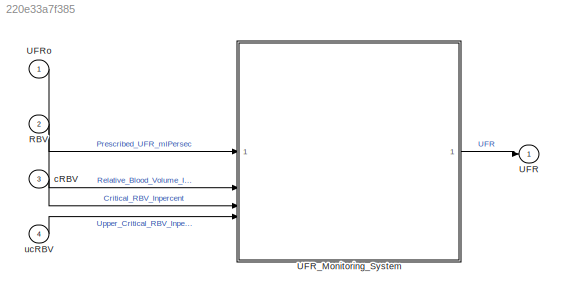
MODEL slx_220e33a7f385
KIND model
CONFIG AbsTol = auto
CONFIG EnableMultiTasking = off
CONFIG FixedStep = auto
CONFIG MaxStep = auto
CONFIG MinStep = auto
CONFIG RelTol = 1e-3
CONFIG SampleTimeConstraint = Unconstrained
CONFIG SolverName = VariableStepAuto
CONFIG StartTime = 0.0
CONFIG StopTime = 3600*4
BLOCK [Inport] RBV
  OutDataTypeStr = double
  OutMax = 255
  OutMin = 0
  Port = 2
  PortDimensions = 1
  SampleTime = 0.01
  SamplingMode = Sample based
  SignalType = real
BLOCK [Outport] UFR
  OutDataTypeStr = double
  OutMax = 255
  OutMin = 0
  PortDimensions = 1
  SampleTime = [0,1]
  SamplingMode = Sample based
  SignalType = real
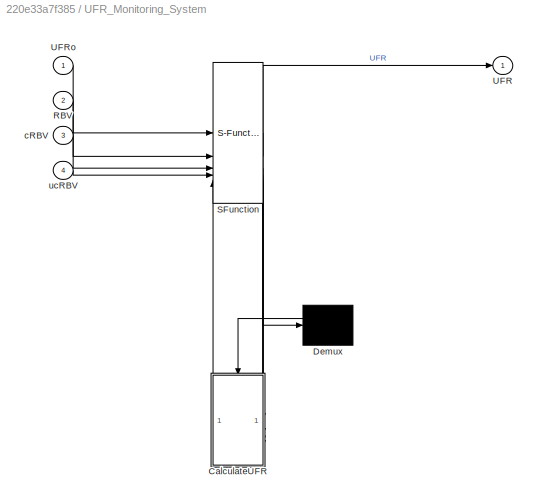
BLOCK [SubSystem] UFR_Monitoring_System
  ErrorFcn = Stateflow.Translate.translate
  PermitHierarchicalResolution = ExplicitOnly
  SFBlockType = Chart
  TreatAsAtomicUnit = on
BLOCK [Demux] UFR_Monitoring_System/ Demux 
  Outputs = 1
BLOCK [S-Function] UFR_Monitoring_System/ SFunction 
  EnableBusSupport = on
  FunctionName = sf_sfun
  PortCounts = [5 6]
  SFcnIsStateOwnerBlock = off
  SFunctionDeploymentMode = off
  Tag = Stateflow S-Function 2
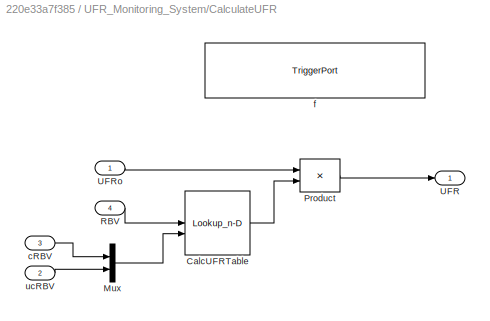
BLOCK [SubSystem] UFR_Monitoring_System/CalculateUFR
  PreDeleteFcn = Stateflow.SLINSF.SimulinkMan.removePreDeleteFcn
  UndoDeleteFcn = Stateflow.SLINSF.SimulinkMan.restorePreDeleteFcn
BLOCK [Lookup_n-D] UFR_Monitoring_System/CalculateUFR/CalcUFRTable
  BreakpointsForDimension1 = [out.cRBV out.ucRBV]
  BreakpointsForDimension1Source = Input port
  InputPortMap = u0,p5
  InternalRulePriority = Speed
  NumberOfTableDimensions = 1
  RndMeth = Simplest
  Table = [0 1]
BLOCK [Mux] UFR_Monitoring_System/CalculateUFR/Mux
  DisplayOption = bar
  Inputs = 2
BLOCK [Product] UFR_Monitoring_System/CalculateUFR/Product
BLOCK [Inport] UFR_Monitoring_System/CalculateUFR/RBV
  OutDataTypeStr = double
  Port = 4
  PortDimensions = 1
  SignalType = real
  VarSizeSig = No
BLOCK [Outport] UFR_Monitoring_System/CalculateUFR/UFR
BLOCK [Inport] UFR_Monitoring_System/CalculateUFR/UFRo
  OutDataTypeStr = double
  PortDimensions = 1
  SignalType = real
  VarSizeSig = No
BLOCK [Inport] UFR_Monitoring_System/CalculateUFR/cRBV
  OutDataTypeStr = double
  Port = 3
  PortDimensions = 1
  SignalType = real
  VarSizeSig = No
BLOCK [TriggerPort] UFR_Monitoring_System/CalculateUFR/f
  CopyFcn = Stateflow.SLINSF.SimulinkMan.removeBlockPreDeleteFcn
  PreDeleteFcn = Stateflow.SLINSF.SimulinkMan.unsafePredeleteFcn
  StatesWhenEnabling = held
  TriggerType = function-call
  VariantControl = (inherit)
BLOCK [Inport] UFR_Monitoring_System/CalculateUFR/ucRBV
  OutDataTypeStr = double
  Port = 2
  PortDimensions = 1
  SignalType = real
  VarSizeSig = No
BLOCK [Inport] UFR_Monitoring_System/RBV
  Port = 2
BLOCK [Outport] UFR_Monitoring_System/UFR
BLOCK [Inport] UFR_Monitoring_System/UFRo
BLOCK [Inport] UFR_Monitoring_System/cRBV
  Port = 3
BLOCK [Inport] UFR_Monitoring_System/ucRBV
  Port = 4
BLOCK [Inport] UFRo
  OutDataTypeStr = double
  OutMax = 255
  OutMin = 0
  PortDimensions = 1
  SampleTime = 0.01
  SamplingMode = Sample based
  SignalType = real
BLOCK [Inport] cRBV
  OutDataTypeStr = double
  OutMax = 255
  OutMin = 0
  Port = 3
  PortDimensions = 1
  SampleTime = 0.01
  SamplingMode = Sample based
  SignalType = real
BLOCK [Inport] ucRBV
  OutDataTypeStr = double
  OutMax = 255
  OutMin = 0
  Port = 4
  PortDimensions = 1
  SampleTime = 0.01
  SamplingMode = Sample based
  SignalType = real
LINE RBV:1 -> UFR_Monitoring_System:2
LINE UFR_Monitoring_System:1 -> UFR:1
LINE UFRo:1 -> UFR_Monitoring_System:1
LINE cRBV:1 -> UFR_Monitoring_System:3
LINE ucRBV:1 -> UFR_Monitoring_System:4
CHART UFR_Monitoring_System states=4 transitions=7
  STATE_LABEL 'UFR = CalculateUFR(UFRo,ucRBV,cRBV,RBV)'
  STATE_LABEL 'Stop\n\nUFR= double(0);'
  STATE_LABEL 'NoCalc\n\nUFR=UFRo;'
  STATE_LABEL 'ReCalc\n\nUFR = CalculateUFR(UFRo,ucRBV,cRBV,RBV);\n'
CHART  states=0 transitions=0
